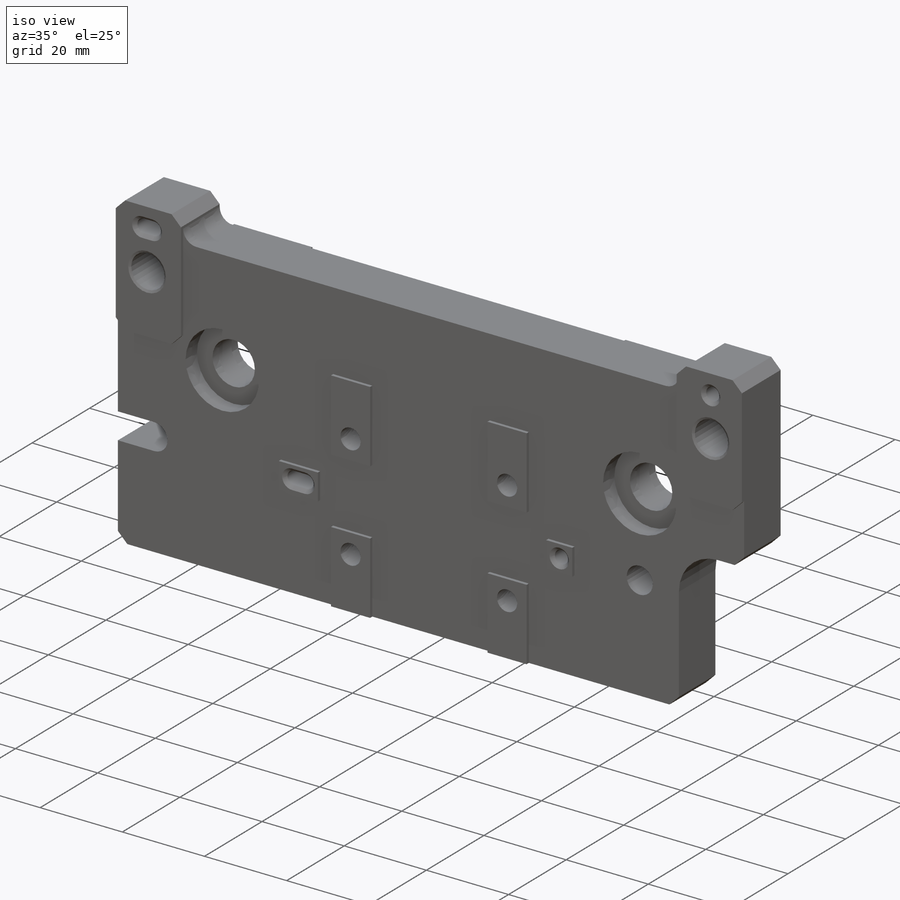
[diagram: iso view]
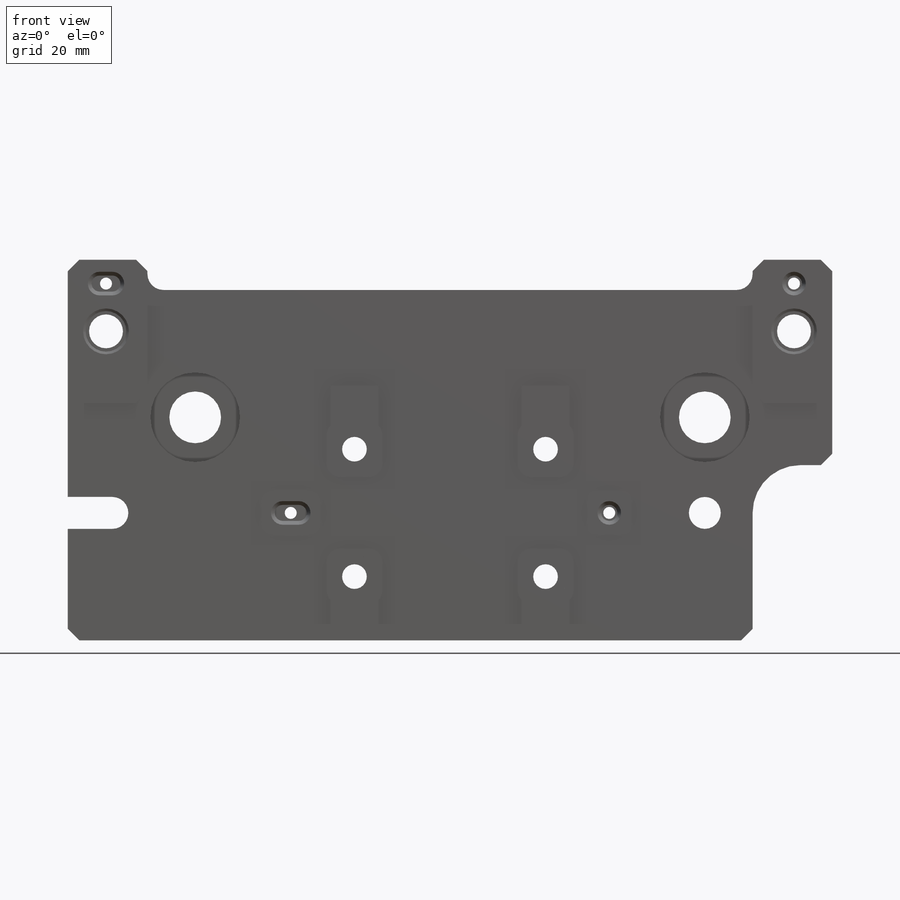
[diagram: front view]
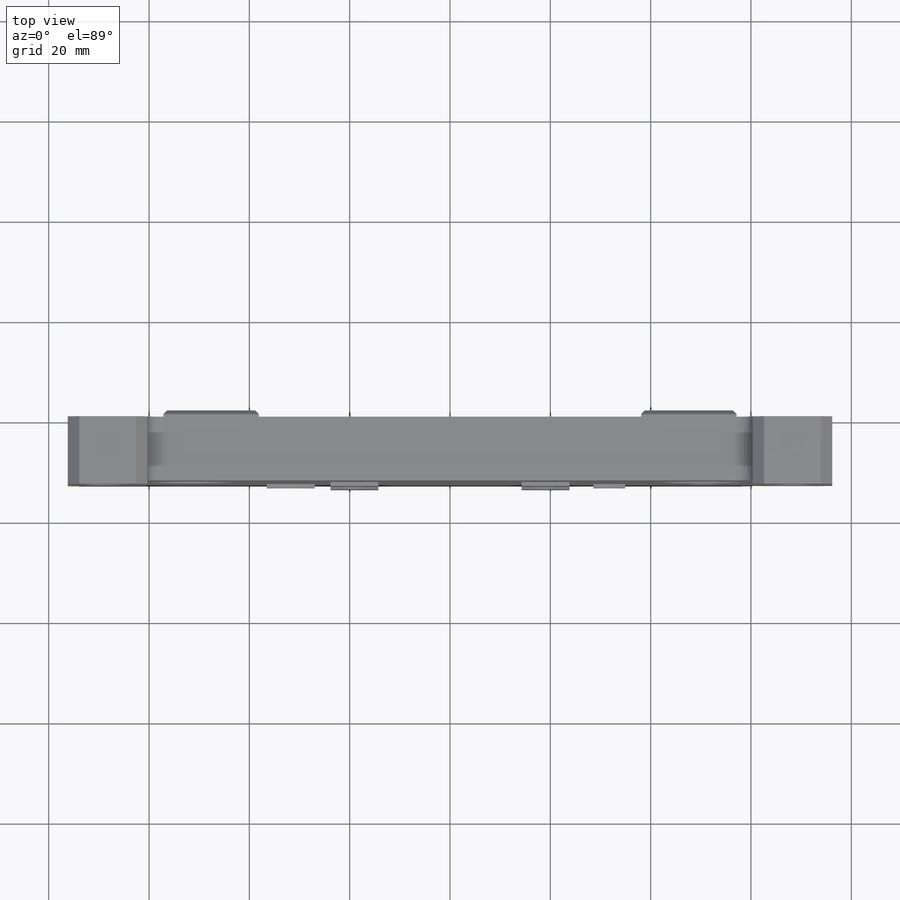
[diagram: top view]
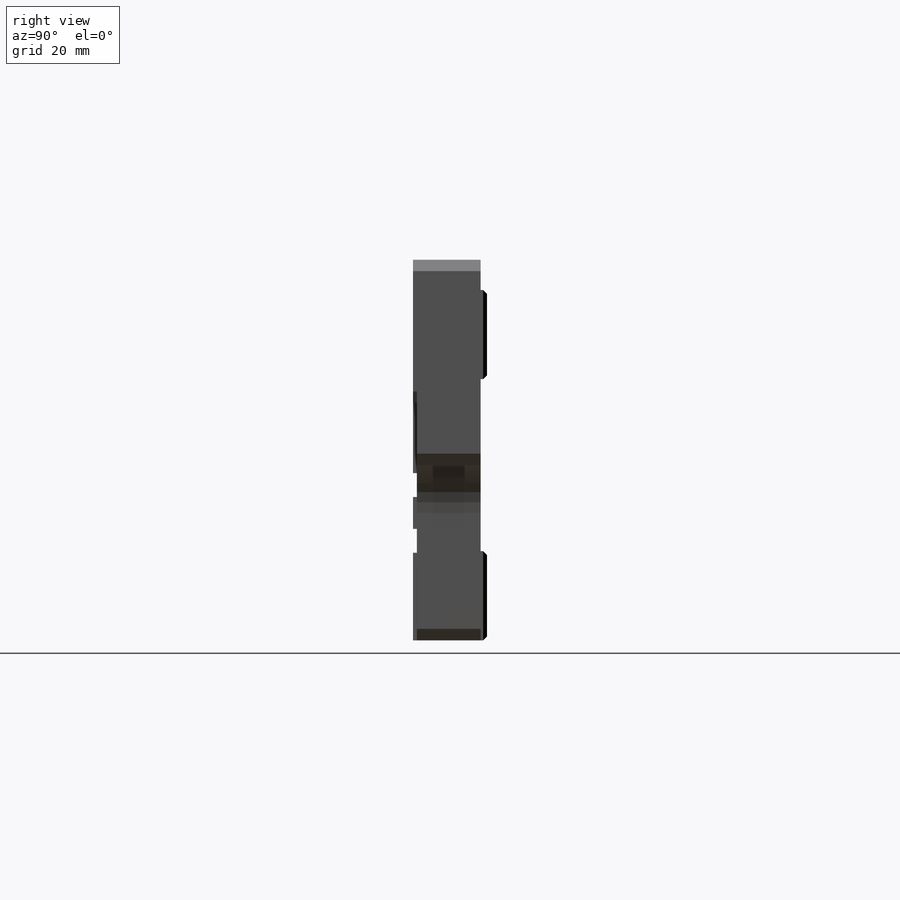
[diagram: right view]
SOLIDWORKS PART (.sldprt)
format: sldprt  version: not decoded by parser v0  size: 944,640 bytes
history: native  units: mm
features: sketch x18, extrude x6, chamfer x5, cut_extrude x4, hole x4, plane x3, material x1, fillet x1 (+11 scaffold rows collapsed)
feature tree (53):
  scaffold x11  (default folders/planes/origin — collapsed)
  material  "6061-T6 Al"
  plane  "XY"
  plane  "XZ"
  plane  "YZ"
  sketch  "Sketch1"  dims[D1=152.4mm D2=69.85mm D3=76.2mm D4=25.4mm]
  extrude  "Base Extrude"  Depth=12.7mm
  sketch  "Sketch29"  dims[c1.D1=69.85mm c1.D2=~17.522399mm c2.D1=69.85mm c2.D2=~20.877751mm c3.D1=19.05mm c3.D2=22.225mm c3.D3=38.1mm c3.D4=38.1mm c3.D5=34.29mm c3.D6=7.62mm]
  extrude  "Mounting Surfaces, Stage2"  Depth=1.27mm
  chamfer  "Chamfer1"  Distance=2.286mm Angle=45deg ID=-1
  sketch  "Sketch17"  dims[c1.D2=4.3688mm c1.D3=6.35mm c1.D1=9.525mm c2.D2=4.7625mm c2.D1=9.525mm c3.D2=7.9375mm c3.D3=14.2875mm c3.D4=25.4mm c3.D5=60.325mm c3.D6=114.3mm c3.D7=27.94mm c3.D8=15.875mm c4.D5=53.34mm c4.D6=50.8mm c5.D5=19.05mm c5.D6=22.225mm c5.D9=12.7mm c5.D10=15.875mm c5.D11=15.24mm]
  extrude  "Mounting Surfaces, Magnet & Bracket"  Depth=0.762mm
  sketch  "Sketch36"  dims[D1=6.0325mm D2=15.875mm]
  extrude  "Extrude1"  [1 undecoded]
  sketch  "Sketch18"  dims[c1.D1=~3.19024mm c1.D3=~1.59385mm c1.D5=~1.662226mm c1.D6=~3.18008mm c1.D7=3.1877mm c1.D9=3.1877mm c1.D2=31.75mm c2.D3=3.175mm c2.D4=31.75mm c2.D5=2.54mm c2.D7=68.58mm c2.D8=68.58mm c2.D9=45.72mm c2.D10=~3.18008mm c2.D11=~3.18008mm c2.D6=4.7625mm]
  cut_extrude  "Pin holes & Slots, Magnet Block & Bobin Bracket"  Depth=6.35mm
  sketch  "Sketch19"  dims[D1=6.35mm D2=9.525mm D3=0.0mm]
  cut_extrude  "Pin hole & Slot, Magnet Block surface"  [1 undecoded]
  sketch  "Sketch20"  dims[c1.D1=19.05mm c1.D2=25.4mm c1.D3=9.525mm c2.D2=1.27mm c2.D3=69.85mm]
  cut_extrude  "Clearance Cut,  GS-13 Screw Head"  [1 undecoded]
  hole  "CBORE for #8 Socket Head Cap Screw1"  Diameter=4.9149mm Depth=13.462mm
  sketch  "Sketch24"  dims[D1=38.1mm D2=25.4mm D3=19.05mm D4=12.7mm]
  sketch  "Sketch23"  dims[hole-wizard template sketch: 42 standard entries collapsed; hole parameters kept: c12.Thru Hole Depth=13.462mm c12.C'Bore Dia.=8.89mm c12.C'Bore Depth=7.62mm]
  hole  "Tapped Hole for 1/4-20 Helicoil1"  Diameter=6.7564mm Depth=14.732025mm
  sketch  "Sketch26"  dims[c1.D1=50.8mm c1.D2=36.0045mm c1.D3=19.05mm c1.D4=134.62mm c1.D5=67.31mm c2.D3=67.945mm c2.D4=136.525mm c2.D5=50.8mm c2.D1=51.435mm c3.D4=68.58mm c3.D1=68.58mm c3.D3=53.975mm c3.D2=14.2875mm]
  sketch  "Sketch25"  dims[hole-wizard template sketch: 42 standard entries collapsed; hole parameters kept: c12.Thru Tap Drill Depth=~14.732025mm c12.Thread Major Dia.=~8.09498mm c12.Thread Depth=11.6586mm c12.Near C'Sink Dia.=9.144mm c12.D6=~4.399409mm c12.Near C'Sink Angle=120.0deg]
  sketch  "Sketch28"  dims[c1.D1=~5.45779mm c1.D4=~6.36778mm c1.D6=~3.17754mm c2.D1=50.8mm c2.D2=73.66mm c2.D3=12.7mm c2.D5=~6.36778mm]
  cut_extrude  "Pin Hole & Slot to Stage2"  [1 undecoded]
  hole  "CBORE for 3/8 Socket Head Cap Screw1"  Diameter=10.3124mm Depth=13.970025mm
  sketch  "Sketch32"  dims[D1=50.8mm D2=50.8mm D3=19.05mm]
  sketch  "Sketch31"  dims[hole-wizard template sketch: 42 standard entries collapsed; hole parameters kept: c12.Thru Hole Depth=~13.970025mm c12.C'Bore Dia.=17.8562mm c12.C'Bore Depth=3.9624mm]
  chamfer  "Chamfer3"  Distance=0.762mm Angle=45deg
  sketch  "Sketch27"  dims[c1.D1=6.35mm c1.D4=6.35mm c1.D5=~2.882674mm c2.D1=9.9116mm c2.D2=6.35mm c2.D3=3.175mm c2.D5=6.35mm]
  hole  "3/32 (0.09375) Diameter Hole1"  Diameter=2.38125mm Depth=14.732mm
  sketch  "Sketch34"
  sketch  "Sketch35"  dims[hole-wizard template sketch: 60 standard entries collapsed; hole parameters kept: c18.Thru Hole Depth=14.732mm]
  chamfer  "Chamfer4"  Distance=1.524mm Angle=45deg cosmosAttributesReplaced=1
  extrude  "cosAttributesReplaced"  Depth=0 cosmosAttributesReplaced=0 cosmosVersionNumber=0mm
  sketch  "Sketch37"  dims[D1=28.575mm]
  extrude  "Extrude2"  [1 undecoded]
  fillet  "Fillet1"  Radius=3.175mm
  chamfer  "Chamfer7"  Distance=0.762mm Angle=45deg
  chamfer  "Chamfer8"  Distance=2.286mm Angle=45deg
decode coverage: 32 of 38 modeling features carry decoded parameters
note: ~ marks probable driven/reference dimensions
note: 5 parameter values undecoded
summary: no parameter record found for 5 features; Diameter pulled from absorbed wizard sketch
note: suppression state not decoded; provenance and decode notes live in map.json
